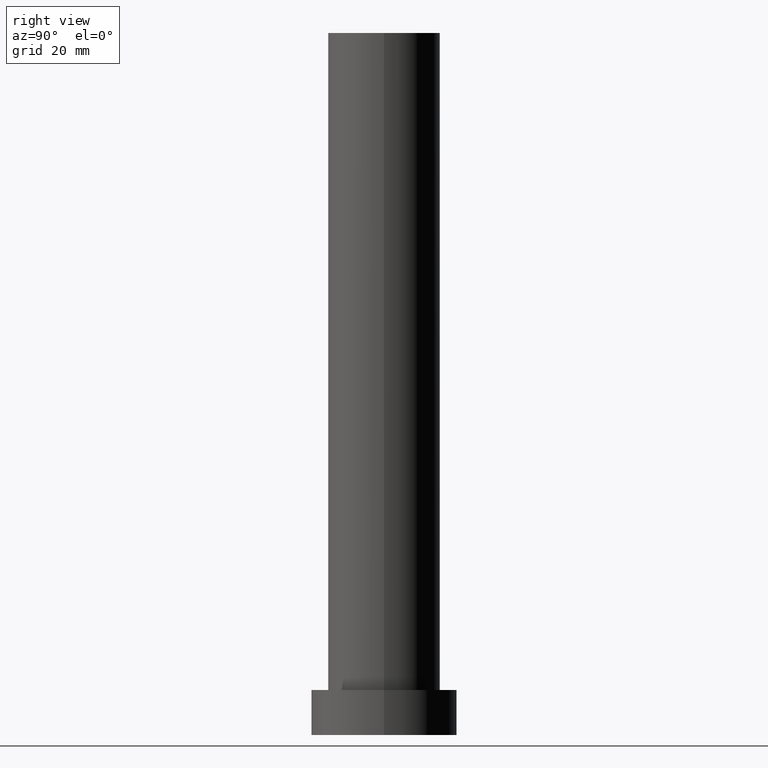
[diagram: clean part render]
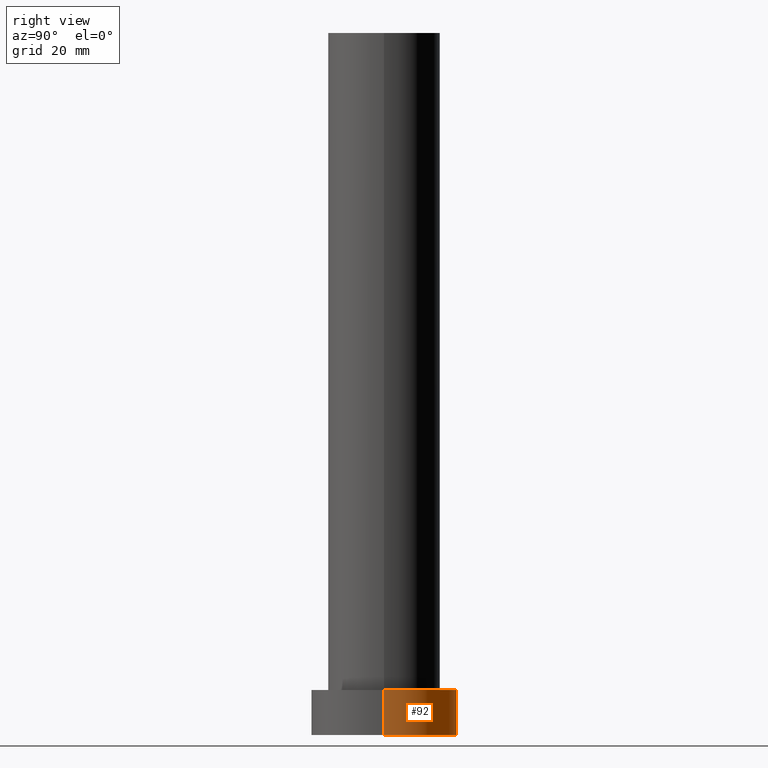
[diagram: same view with one face highlighted and labeled with its STEP entity id]
A machine part, right view. The second image highlights one B-rep face of the part: STEP entity #92.
In plain terms, the highlighted cylindrical surface (partial cylindrical patch) has radius 13 mm, axis along (-0, -0, -1).
Its self-contained STEP definition (entity closure, byte-faithful):
#6 = DIRECTION ( 'NONE',  ( 0.000000000000000000, 0.000000000000000000, 1.000000000000000000 ) ) ;
#10 = DIRECTION ( 'NONE',  ( -0.000000000000000000, -0.000000000000000000, -1.000000000000000000 ) ) ;
#18 = CYLINDRICAL_SURFACE ( 'NONE', #129, 13.00000000000000178 ) ;
#21 = LINE ( 'NONE', #100, #226 ) ;
#46 = EDGE_CURVE ( 'NONE', #191, #120, #156, .T. ) ;
#49 = CARTESIAN_POINT ( 'NONE',  ( -13.00000000000000178, 0.000000000000000000, 8.000000000000000000 ) ) ;
#61 = CARTESIAN_POINT ( 'NONE',  ( 0.000000000000000000, 0.000000000000000000, 0.000000000000000000 ) ) ;
#63 = CIRCLE ( 'NONE', #227, 13.00000000000000178 ) ;
#79 = EDGE_CURVE ( 'NONE', #191, #235, #95, .T. ) ;
#92 = ADVANCED_FACE ( 'NONE', ( #230 ), #18, .T. ) ;
#95 = LINE ( 'NONE', #169, #224 ) ;
#98 = DIRECTION ( 'NONE',  ( -1.000000000000000000, 0.000000000000000000, 0.000000000000000000 ) ) ;
#100 = CARTESIAN_POINT ( 'NONE',  ( -13.00000000000000178, 0.000000000000000000, 8.000000000000000000 ) ) ;
#102 = CARTESIAN_POINT ( 'NONE',  ( 13.00000000000000178, 1.592040838891559293E-15, 8.000000000000000000 ) ) ;
#112 = CARTESIAN_POINT ( 'NONE',  ( 0.000000000000000000, 0.000000000000000000, 8.000000000000000000 ) ) ;
#116 = ORIENTED_EDGE ( 'NONE', *, *, #46, .F. ) ;
#118 = ORIENTED_EDGE ( 'NONE', *, *, #247, .T. ) ;
#120 = VERTEX_POINT ( 'NONE', #49 ) ;
#129 = AXIS2_PLACEMENT_3D ( 'NONE', #207, #133, #98 ) ;
#133 = DIRECTION ( 'NONE',  ( -0.000000000000000000, -0.000000000000000000, -1.000000000000000000 ) ) ;
#139 = EDGE_CURVE ( 'NONE', #120, #150, #21, .T. ) ;
#141 = DIRECTION ( 'NONE',  ( 1.000000000000000000, 0.000000000000000000, 0.000000000000000000 ) ) ;
#150 = VERTEX_POINT ( 'NONE', #238 ) ;
#156 = CIRCLE ( 'NONE', #194, 13.00000000000000178 ) ;
#166 = DIRECTION ( 'NONE',  ( 0.000000000000000000, 0.000000000000000000, 1.000000000000000000 ) ) ;
#169 = CARTESIAN_POINT ( 'NONE',  ( 13.00000000000000178, 1.592040838891559293E-15, 8.000000000000000000 ) ) ;
#171 = DIRECTION ( 'NONE',  ( -0.000000000000000000, -0.000000000000000000, -1.000000000000000000 ) ) ;
#184 = ORIENTED_EDGE ( 'NONE', *, *, #139, .F. ) ;
#191 = VERTEX_POINT ( 'NONE', #102 ) ;
#194 = AXIS2_PLACEMENT_3D ( 'NONE', #112, #166, #252 ) ;
#207 = CARTESIAN_POINT ( 'NONE',  ( 0.000000000000000000, 0.000000000000000000, 8.000000000000000000 ) ) ;
#215 = ORIENTED_EDGE ( 'NONE', *, *, #79, .T. ) ;
#218 = EDGE_LOOP ( 'NONE', ( #116, #215, #118, #184 ) ) ;
#224 = VECTOR ( 'NONE', #10, 1000.000000000000000 ) ;
#226 = VECTOR ( 'NONE', #171, 1000.000000000000000 ) ;
#227 = AXIS2_PLACEMENT_3D ( 'NONE', #61, #6, #141 ) ;
#230 = FACE_OUTER_BOUND ( 'NONE', #218, .T. ) ;
#235 = VERTEX_POINT ( 'NONE', #242 ) ;
#238 = CARTESIAN_POINT ( 'NONE',  ( -13.00000000000000178, 0.000000000000000000, 0.000000000000000000 ) ) ;
#242 = CARTESIAN_POINT ( 'NONE',  ( 13.00000000000000178, 1.592040838891559293E-15, 0.000000000000000000 ) ) ;
#247 = EDGE_CURVE ( 'NONE', #235, #150, #63, .T. ) ;
#252 = DIRECTION ( 'NONE',  ( 1.000000000000000000, 0.000000000000000000, 0.000000000000000000 ) ) ;